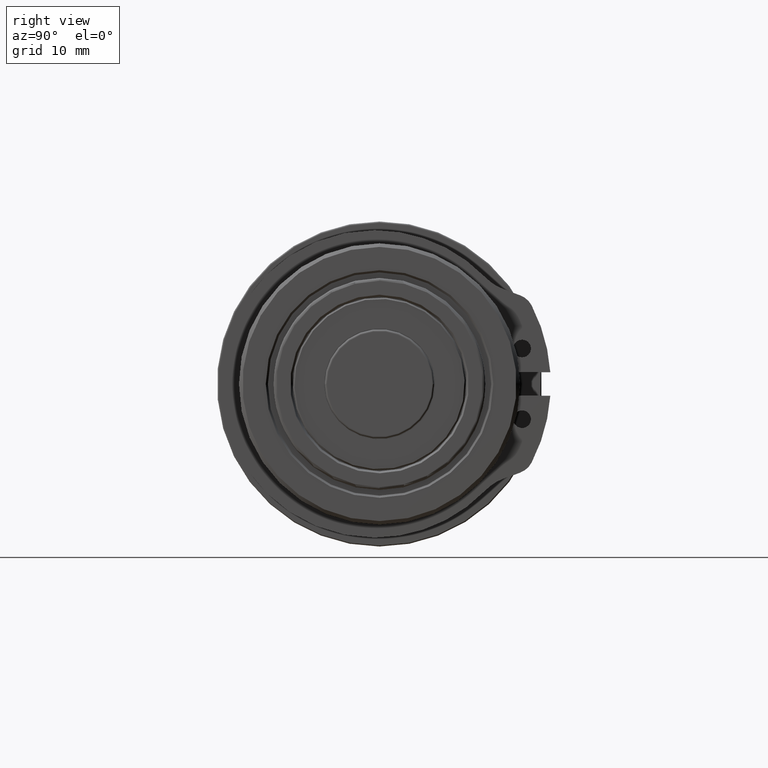
[diagram: clean part render]
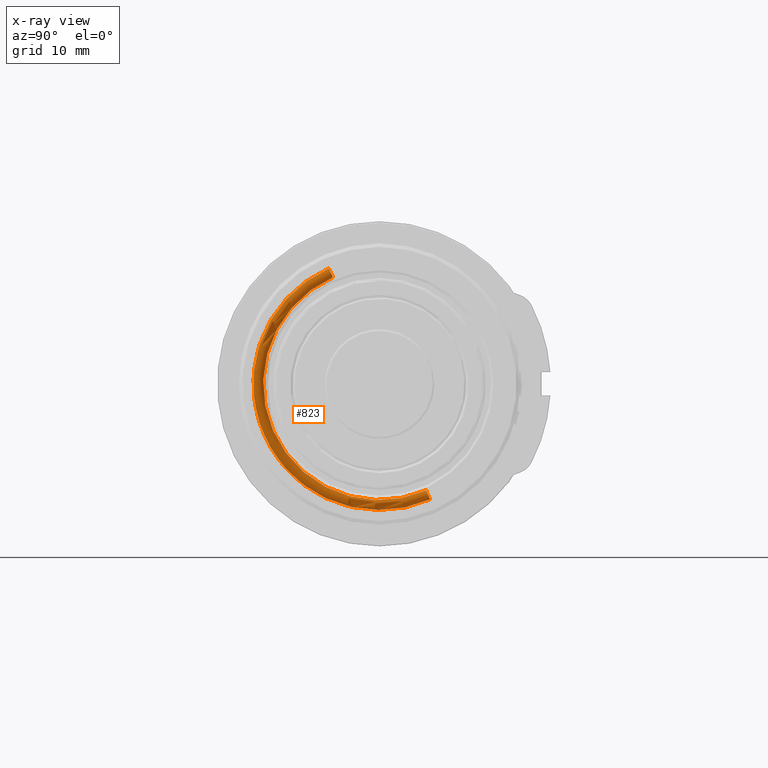
[diagram: x-ray — body ghosted, one internal face saturated and labeled with its STEP entity id]
A machine part, right view, then the same camera in x-ray: the body is ghosted and one INTERNAL B-rep face — a face not visible from any outside direction — is saturated and labeled: STEP entity #823.
In plain terms, the highlighted toroidal blend (fillet) surface has major radius 17.15 mm and minor (blend) radius 0.7 mm.
Its self-contained STEP definition (entity closure, byte-faithful):
#356 = EDGE_LOOP ( 'NONE', ( #1176, #1294, #1340, #1126 ) ) ;
#823 = ADVANCED_FACE ( 'NONE', ( #2976 ), #3092, .T. ) ;
#939 = VERTEX_POINT ( 'NONE', #4282 ) ;
#985 = VERTEX_POINT ( 'NONE', #4049 ) ;
#997 = VERTEX_POINT ( 'NONE', #4064 ) ;
#1003 = VERTEX_POINT ( 'NONE', #4073 ) ;
#1014 = AXIS2_PLACEMENT_3D ( 'NONE', #3898, #3632, #3794 ) ;
#1126 = ORIENTED_EDGE ( 'NONE', *, *, #3535, .F. ) ;
#1176 = ORIENTED_EDGE ( 'NONE', *, *, #1909, .F. ) ;
#1294 = ORIENTED_EDGE ( 'NONE', *, *, #3474, .T. ) ;
#1340 = ORIENTED_EDGE ( 'NONE', *, *, #1991, .T. ) ;
#1481 = CARTESIAN_POINT ( 'NONE',  ( 14.49999999999999800, 6.875252981892445300, -15.71156887248943700 ) ) ;
#1642 = DIRECTION ( 'NONE',  ( 0.0000000000000000000, -0.9161264648681888300, -0.4008893866992679900 ) ) ;
#1682 = DIRECTION ( 'NONE',  ( 0.0000000000000000000, 0.4008893866992679900, -0.9161264648681888300 ) ) ;
#1909 = EDGE_CURVE ( 'NONE', #985, #997, #2947, .T. ) ;
#1991 = EDGE_CURVE ( 'NONE', #1003, #939, #2982, .T. ) ;
#2202 = CIRCLE ( 'NONE', #1014, 16.44999999999999900 ) ;
#2261 = CIRCLE ( 'NONE', #2731, 17.84999999999999800 ) ;
#2657 = AXIS2_PLACEMENT_3D ( 'NONE', #1481, #1642, #1682 ) ;
#2726 = AXIS2_PLACEMENT_3D ( 'NONE', #4262, #4261, #3980 ) ;
#2731 = AXIS2_PLACEMENT_3D ( 'NONE', #3865, #3729, #3918 ) ;
#2786 = AXIS2_PLACEMENT_3D ( 'NONE', #3981, #3982, #3971 ) ;
#2947 = CIRCLE ( 'NONE', #2726, 0.6999999999999992900 ) ;
#2976 = FACE_OUTER_BOUND ( 'NONE', #356, .T. ) ;
#2982 = CIRCLE ( 'NONE', #2657, 0.6999999999999992900 ) ;
#3092 = TOROIDAL_SURFACE ( 'NONE', #2786, 17.14999999999999900, 0.6999999999999986200 ) ;
#3474 = EDGE_CURVE ( 'NONE', #985, #1003, #2261, .T. ) ;
#3535 = EDGE_CURVE ( 'NONE', #997, #939, #2202, .T. ) ;
#3632 = DIRECTION ( 'NONE',  ( 1.000000000000000000, 0.0000000000000000000, 0.0000000000000000000 ) ) ;
#3729 = DIRECTION ( 'NONE',  ( 1.000000000000000000, 0.0000000000000000000, 0.0000000000000000000 ) ) ;
#3794 = DIRECTION ( 'NONE',  ( 0.0000000000000000000, 0.0000000000000000000, -1.000000000000000000 ) ) ;
#3865 = CARTESIAN_POINT ( 'NONE',  ( 14.49999999999999800, 0.0000000000000000000, 0.0000000000000000000 ) ) ;
#3898 = CARTESIAN_POINT ( 'NONE',  ( 14.49999999999999800, 0.0000000000000000000, 0.0000000000000000000 ) ) ;
#3918 = DIRECTION ( 'NONE',  ( 0.0000000000000000000, 0.0000000000000000000, -1.000000000000000000 ) ) ;
#3971 = DIRECTION ( 'NONE',  ( 0.0000000000000000000, 0.4008893866992679900, -0.9161264648681888300 ) ) ;
#3980 = DIRECTION ( 'NONE',  ( 0.0000000000000000000, -0.4008893866992679900, 0.9161264648681888300 ) ) ;
#3981 = CARTESIAN_POINT ( 'NONE',  ( 14.49999999999999800, 0.0000000000000000000, 0.0000000000000000000 ) ) ;
#3982 = DIRECTION ( 'NONE',  ( 1.000000000000000000, 0.0000000000000000000, 0.0000000000000000000 ) ) ;
#4049 = CARTESIAN_POINT ( 'NONE',  ( 14.49999999999999800, -7.155875552581930400, 16.35285739789717100 ) ) ;
#4064 = CARTESIAN_POINT ( 'NONE',  ( 14.49999999999999800, -6.594630411202955700, 15.07028034708170600 ) ) ;
#4073 = CARTESIAN_POINT ( 'NONE',  ( 14.49999999999999800, 7.155875552581931300, -16.35285739789717100 ) ) ;
#4261 = DIRECTION ( 'NONE',  ( -0.0000000000000000000, 0.9161264648681890500, 0.4008893866992679900 ) ) ;
#4262 = CARTESIAN_POINT ( 'NONE',  ( 14.49999999999999800, -6.875252981892443500, 15.71156887248943700 ) ) ;
#4282 = CARTESIAN_POINT ( 'NONE',  ( 14.49999999999999800, 6.594630411202956600, -15.07028034708170600 ) ) ;